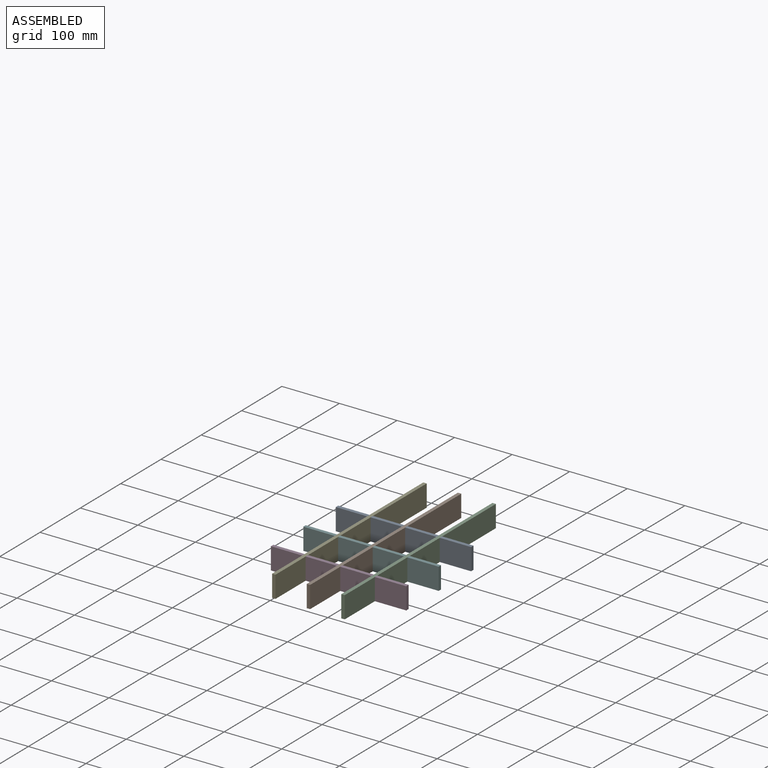
[diagram: assembled view]
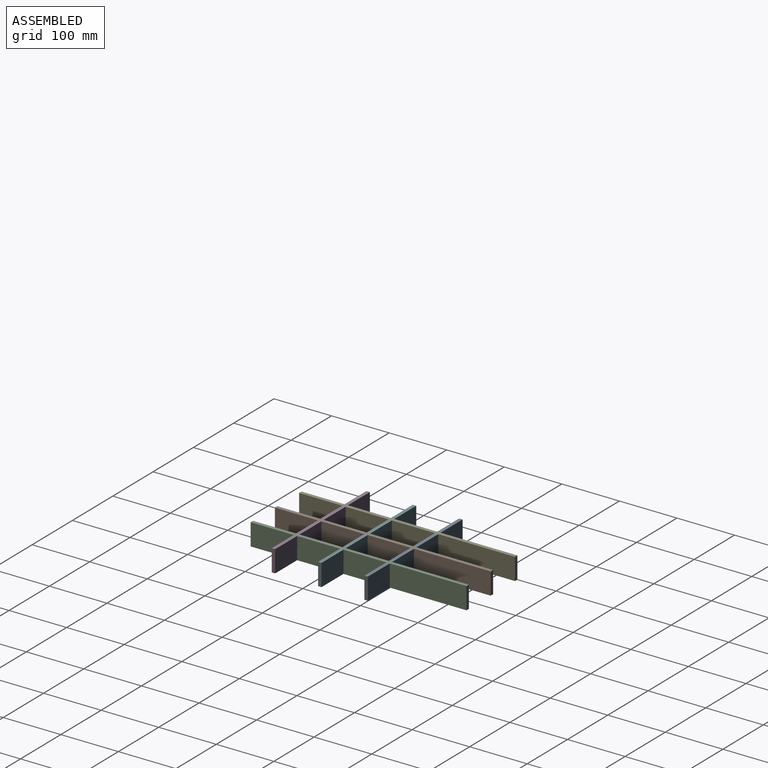
[diagram: assembled view, second angle]
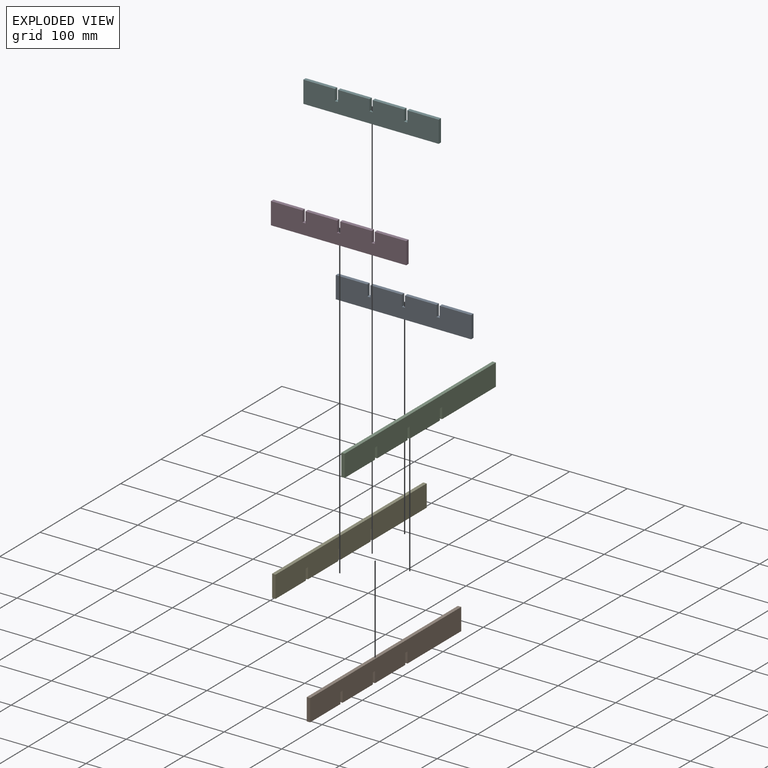
[diagram: exploded view]
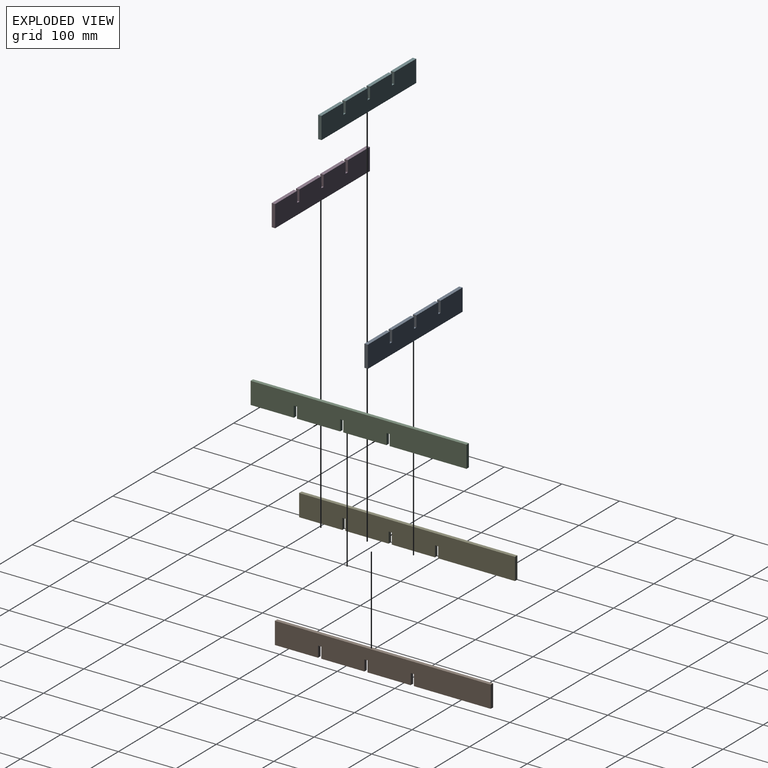
[diagram: exploded view, second angle]
ASSEMBLY  parts=6 mates=5
PART A: 18 faces, bbox 235x6x38 mm
  f0: plane 54.63x6mm, normal (0,0,1), area 327.7mm2, adj f1,f15,f16,f17
  f1: plane 19x6mm, normal (-1,0,0), area 114mm2, adj f0,f2,f16,f17
  f2: plane 6x5.5mm, normal (0,0,1), area 33mm2, adj f1,f3,f16,f17
  f3: plane 19x6mm, normal (1,0,0), area 114mm2, adj f2,f4,f16,f17
  f4: plane 54.63x6mm, normal (0,0,1), area 327.8mm2, adj f3,f5,f16,f17
  f5: plane 19x6mm, normal (-1,0,0), area 114mm2, adj f4,f6,f16,f17
  f6: plane 6x5.5mm, normal (0,0,1), area 33mm2, adj f5,f7,f16,f17
  f7: plane 19x6mm, normal (1,0,0), area 114mm2, adj f6,f8,f16,f17
  f8: plane 54.63x6mm, normal (0,0,1), area 327.8mm2, adj f7,f9,f16,f17
  f9: plane 19x6mm, normal (-1,0,0), area 114mm2, adj f8,f10,f16,f17
  f10: plane 6x5.5mm, normal (0,0,1), area 33mm2, adj f9,f11,f16,f17
  f11: plane 19x6mm, normal (1,0,0), area 114mm2, adj f10,f12,f16,f17
  f12: plane 54.63x6mm, normal (0,0,1), area 327.7mm2, adj f11,f13,f16,f17
  f13: plane 38x6mm, normal (-1,0,0), area 228mm2, adj f12,f14,f16,f17
  f14: plane 235x6mm, normal (0,0,-1), area 1410mm2, adj f13,f15,f16,f17
  f15: plane 38x6mm, normal (1,0,0), area 228mm2, adj f0,f14,f16,f17
  f16: plane 235x38mm, normal (0,-1,0), area 8616.5mm2, adj f0,f1,f2,f3,f4,f5,f6,f7
  f17: plane 235x38mm, normal (0,1,0), area 8616.5mm2, adj f0,f1,f2,f3,f4,f5,f6,f7
PART B: 18 faces, bbox 6x375x38 mm
  f0: plane 19x6mm, normal (0,-1,0), area 114mm2, adj f1,f15,f16,f17
  f1: plane 133.5x6mm, normal (0,0,-1), area 801mm2, adj f0,f2,f16,f17
  f2: plane 38x6mm, normal (0,1,0), area 228mm2, adj f1,f3,f16,f17
  f3: plane 375x6mm, normal (0,0,1), area 2250mm2, adj f2,f4,f16,f17
  f4: plane 38x6mm, normal (0,-1,0), area 228mm2, adj f3,f5,f16,f17
  f5: plane 75x6mm, normal (0,0,-1), area 450mm2, adj f4,f6,f16,f17
  f6: plane 19x6mm, normal (0,1,0), area 114mm2, adj f5,f7,f16,f17
  f7: plane 6x5.5mm, normal (0,0,-1), area 33mm2, adj f6,f8,f16,f17
  f8: plane 19x6mm, normal (0,-1,0), area 114mm2, adj f7,f9,f16,f17
  f9: plane 75x6mm, normal (0,0,-1), area 450mm2, adj f8,f10,f16,f17
  f10: plane 19x6mm, normal (0,1,0), area 114mm2, adj f9,f11,f16,f17
  f11: plane 6x5.5mm, normal (0,0,-1), area 33mm2, adj f10,f12,f16,f17
  f12: plane 19x6mm, normal (0,-1,0), area 114mm2, adj f11,f13,f16,f17
  f13: plane 75x6mm, normal (0,0,-1), area 450mm2, adj f12,f14,f16,f17
  f14: plane 19x6mm, normal (0,1,0), area 114mm2, adj f13,f15,f16,f17
  f15: plane 6x5.5mm, normal (0,0,-1), area 33mm2, adj f0,f14,f16,f17
  f16: plane 375x38mm, normal (1,0,0), area 13936.5mm2, adj f0,f1,f2,f3,f4,f5,f6,f7
  f17: plane 375x38mm, normal (-1,0,0), area 13936.5mm2, adj f0,f1,f2,f3,f4,f5,f6,f7
PART C: same geometry as B
PART D: same geometry as A
PART E: same geometry as B
PART F: same geometry as A
PLACE A t=(-112.96,26.54,58.85)mm
PLACE B t=(-115.96,-27.71,58.85)mm fixed
PLACE C t=(-55.83,-27.71,58.85)mm
PLACE D t=(-112.96,-134.46,58.85)mm
PLACE E t=(-176.08,-27.71,58.85)mm
PLACE F t=(-112.96,-53.96,58.85)mm
MATE fastened D.f6 <-> B.f7  axis (0,0,1) through (-112.96,-137.46,58.85)mm
MATE fastened D.f2 <-> C.f7  axis (0,0,1) through (-52.83,-137.46,58.85)mm
MATE fastened E.f7 <-> D.f10  axis (0,0,-1) through (-173.08,-137.46,58.85)mm
MATE fastened A.f6 <-> B.f15  axis (0,0,1) through (-112.96,23.54,58.85)mm
MATE fastened F.f6 <-> B.f11  axis (0,0,1) through (-112.96,-56.96,58.85)mm
